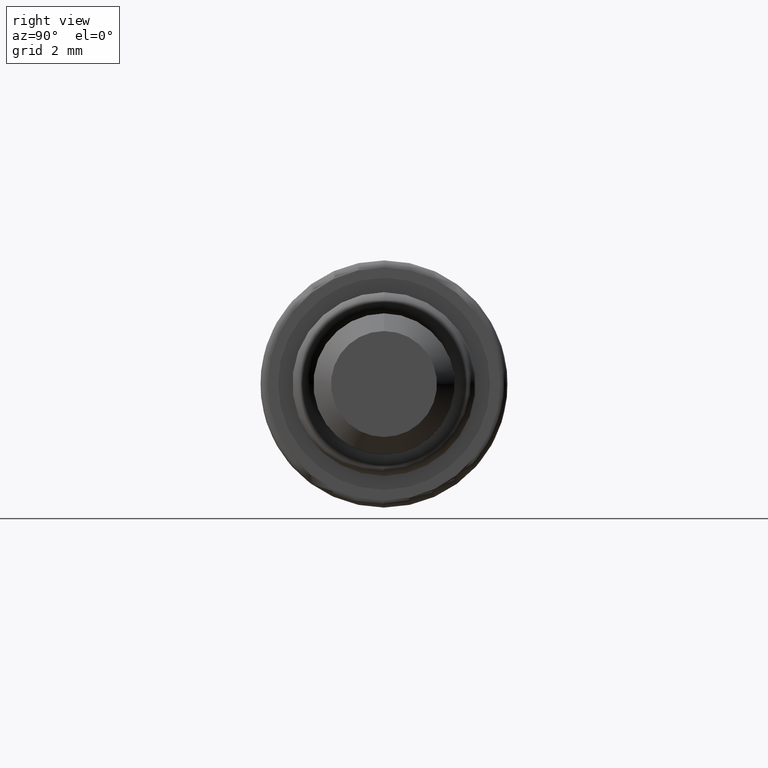
[diagram: clean part render]
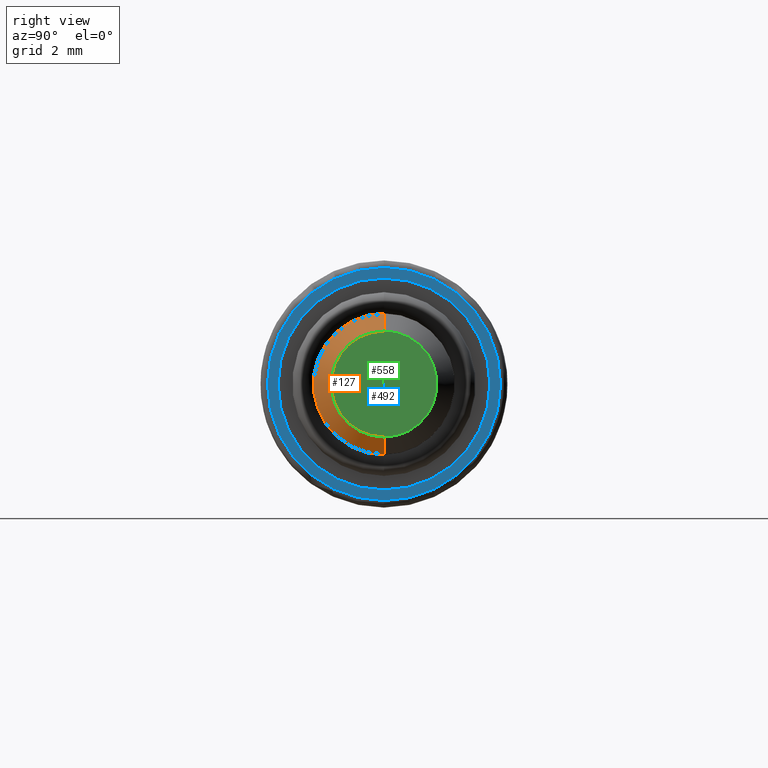
[diagram: same view with three faces highlighted in distinct colors, each labeled with its STEP entity id]
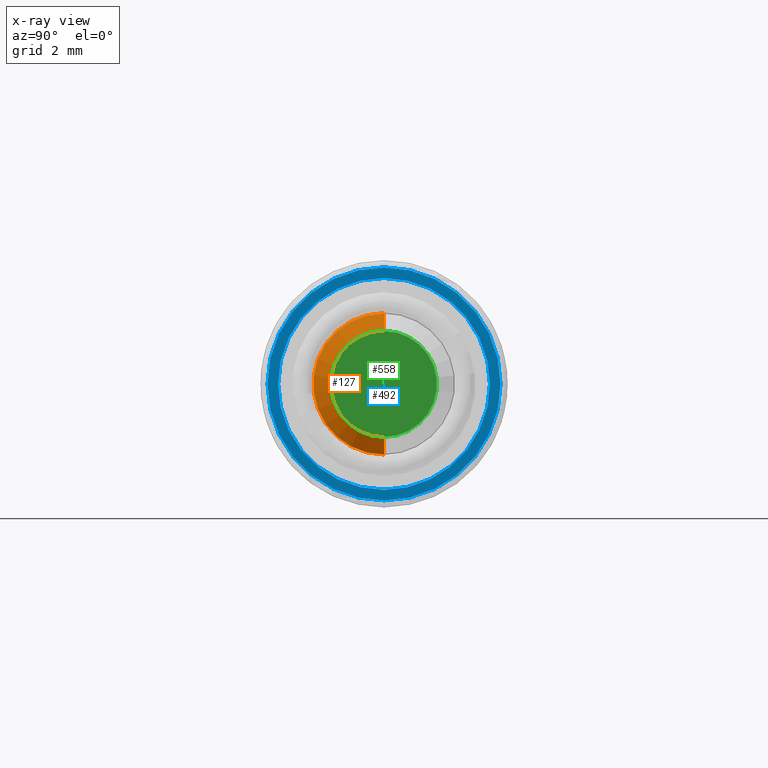
[diagram: x-ray of the same camera — body ghosted, the three highlighted faces saturated]
A machine part, right view with three faces highlighted in distinct colors.
The next image is the same camera in x-ray (body ghosted, the three faces saturated) — at least one of them is partly hidden behind the body in this view.
Their STEP definitions:

[orange] entity #127 — the highlighted conical surface has half-angle 45 deg.
#16 = DIRECTION ( 'NONE',  ( 0.0000000000000000000, 0.0000000000000000000, 1.000000000000000000 ) ) ;
#40 = DIRECTION ( 'NONE',  ( -1.000000000000000000, 0.0000000000000000000, 0.0000000000000000000 ) ) ;
#121 = CONICAL_SURFACE ( 'NONE', #613, 1.499999999999999600, 0.7853981633974482800 ) ;
#127 = ADVANCED_FACE ( 'NONE', ( #316 ), #121, .T. ) ;
#131 = ORIENTED_EDGE ( 'NONE', *, *, #468, .F. ) ;
#168 = DIRECTION ( 'NONE',  ( 1.000000000000000000, 0.0000000000000000000, 0.0000000000000000000 ) ) ;
#182 = CARTESIAN_POINT ( 'NONE',  ( 15.00000000000000000, 0.0000000000000000000, 0.0000000000000000000 ) ) ;
#207 = ORIENTED_EDGE ( 'NONE', *, *, #273, .F. ) ;
#223 = CIRCLE ( 'NONE', #394, 1.499999999999999600 ) ;
#229 = CARTESIAN_POINT ( 'NONE',  ( 15.00000000000000000, 0.0000000000000000000, 1.499999999999999600 ) ) ;
#232 = CARTESIAN_POINT ( 'NONE',  ( 15.00000000000000000, 0.0000000000000000000, 1.499999999999999600 ) ) ;
#273 = EDGE_CURVE ( 'NONE', #542, #445, #670, .T. ) ;
#283 = CARTESIAN_POINT ( 'NONE',  ( 15.00000000000000000, 1.836970198721029400E-016, -1.499999999999999600 ) ) ;
#292 = DIRECTION ( 'NONE',  ( -0.7071067811865474600, 0.0000000000000000000, 0.7071067811865474600 ) ) ;
#316 = FACE_OUTER_BOUND ( 'NONE', #339, .T. ) ;
#321 = DIRECTION ( 'NONE',  ( -1.000000000000000000, 0.0000000000000000000, 0.0000000000000000000 ) ) ;
#339 = EDGE_LOOP ( 'NONE', ( #207, #437, #344, #131 ) ) ;
#344 = ORIENTED_EDGE ( 'NONE', *, *, #760, .T. ) ;
#384 = VECTOR ( 'NONE', #292, 1000.000000000000100 ) ;
#390 = CARTESIAN_POINT ( 'NONE',  ( 14.49999999999999800, 0.0000000000000000000, 2.000000000000000000 ) ) ;
#394 = AXIS2_PLACEMENT_3D ( 'NONE', #550, #168, #615 ) ;
#399 = CARTESIAN_POINT ( 'NONE',  ( 14.49999999999999800, 0.0000000000000000000, 0.0000000000000000000 ) ) ;
#417 = CIRCLE ( 'NONE', #457, 2.000000000000000000 ) ;
#437 = ORIENTED_EDGE ( 'NONE', *, *, #799, .F. ) ;
#445 = VERTEX_POINT ( 'NONE', #664 ) ;
#457 = AXIS2_PLACEMENT_3D ( 'NONE', #399, #321, #539 ) ;
#458 = VERTEX_POINT ( 'NONE', #390 ) ;
#468 = EDGE_CURVE ( 'NONE', #445, #458, #417, .T. ) ;
#496 = VECTOR ( 'NONE', #680, 1000.000000000000100 ) ;
#539 = DIRECTION ( 'NONE',  ( 0.0000000000000000000, 0.0000000000000000000, -1.000000000000000000 ) ) ;
#542 = VERTEX_POINT ( 'NONE', #712 ) ;
#550 = CARTESIAN_POINT ( 'NONE',  ( 15.00000000000000000, 0.0000000000000000000, 0.0000000000000000000 ) ) ;
#561 = LINE ( 'NONE', #232, #384 ) ;
#613 = AXIS2_PLACEMENT_3D ( 'NONE', #182, #40, #16 ) ;
#615 = DIRECTION ( 'NONE',  ( 0.0000000000000000000, 0.0000000000000000000, -1.000000000000000000 ) ) ;
#664 = CARTESIAN_POINT ( 'NONE',  ( 14.49999999999999800, 2.449293598294706400E-016, -2.000000000000000000 ) ) ;
#670 = LINE ( 'NONE', #283, #496 ) ;
#680 = DIRECTION ( 'NONE',  ( -0.7071067811865474600, 8.659560562354932900E-017, -0.7071067811865474600 ) ) ;
#712 = CARTESIAN_POINT ( 'NONE',  ( 15.00000000000000000, 2.143131898507867800E-016, -1.499999999999999600 ) ) ;
#755 = VERTEX_POINT ( 'NONE', #229 ) ;
#760 = EDGE_CURVE ( 'NONE', #755, #458, #561, .T. ) ;
#799 = EDGE_CURVE ( 'NONE', #755, #542, #223, .T. ) ;

[blue] entity #492 — the highlighted planar face has unit normal (1, 0, 0).
#5 = ORIENTED_EDGE ( 'NONE', *, *, #196, .F. ) ;
#20 = CARTESIAN_POINT ( 'NONE',  ( 0.0000000000000000000, 3.673940397442060400E-016, 3.000000000000000400 ) ) ;
#33 = DIRECTION ( 'NONE',  ( 1.000000000000000000, 0.0000000000000000000, 0.0000000000000000000 ) ) ;
#67 = EDGE_CURVE ( 'NONE', #153, #618, #192, .T. ) ;
#89 = AXIS2_PLACEMENT_3D ( 'NONE', #609, #472, #467 ) ;
#100 = FACE_OUTER_BOUND ( 'NONE', #608, .T. ) ;
#138 = AXIS2_PLACEMENT_3D ( 'NONE', #409, #33, #474 ) ;
#148 = CIRCLE ( 'NONE', #138, 3.300000000000000300 ) ;
#152 = PLANE ( 'NONE',  #596 ) ;
#153 = VERTEX_POINT ( 'NONE', #605 ) ;
#192 = CIRCLE ( 'NONE', #432, 3.000000000000000400 ) ;
#196 = EDGE_CURVE ( 'NONE', #618, #153, #635, .T. ) ;
#197 = ORIENTED_EDGE ( 'NONE', *, *, #726, .T. ) ;
#201 = CIRCLE ( 'NONE', #89, 3.300000000000000300 ) ;
#307 = CARTESIAN_POINT ( 'NONE',  ( 0.0000000000000000000, 0.0000000000000000000, 0.0000000000000000000 ) ) ;
#320 = VERTEX_POINT ( 'NONE', #373 ) ;
#328 = ORIENTED_EDGE ( 'NONE', *, *, #67, .F. ) ;
#370 = DIRECTION ( 'NONE',  ( 0.0000000000000000000, 0.0000000000000000000, -1.000000000000000000 ) ) ;
#373 = CARTESIAN_POINT ( 'NONE',  ( 0.0000000000000000000, 0.0000000000000000000, -3.300000000000000300 ) ) ;
#409 = CARTESIAN_POINT ( 'NONE',  ( 0.0000000000000000000, 0.0000000000000000000, 0.0000000000000000000 ) ) ;
#420 = DIRECTION ( 'NONE',  ( 1.000000000000000000, 0.0000000000000000000, 0.0000000000000000000 ) ) ;
#432 = AXIS2_PLACEMENT_3D ( 'NONE', #307, #559, #654 ) ;
#455 = CARTESIAN_POINT ( 'NONE',  ( 0.0000000000000000000, 0.0000000000000000000, 0.0000000000000000000 ) ) ;
#467 = DIRECTION ( 'NONE',  ( 0.0000000000000000000, 0.0000000000000000000, -1.000000000000000000 ) ) ;
#472 = DIRECTION ( 'NONE',  ( 1.000000000000000000, 0.0000000000000000000, 0.0000000000000000000 ) ) ;
#474 = DIRECTION ( 'NONE',  ( 0.0000000000000000000, 0.0000000000000000000, -1.000000000000000000 ) ) ;
#492 = ADVANCED_FACE ( 'NONE', ( #100, #737 ), #152, .T. ) ;
#495 = CARTESIAN_POINT ( 'NONE',  ( 0.0000000000000000000, 0.0000000000000000000, 0.0000000000000000000 ) ) ;
#559 = DIRECTION ( 'NONE',  ( 1.000000000000000000, 0.0000000000000000000, 0.0000000000000000000 ) ) ;
#563 = EDGE_CURVE ( 'NONE', #320, #616, #201, .T. ) ;
#596 = AXIS2_PLACEMENT_3D ( 'NONE', #455, #818, #601 ) ;
#601 = DIRECTION ( 'NONE',  ( 0.0000000000000000000, 0.0000000000000000000, -1.000000000000000000 ) ) ;
#605 = CARTESIAN_POINT ( 'NONE',  ( 0.0000000000000000000, 0.0000000000000000000, -3.000000000000000400 ) ) ;
#608 = EDGE_LOOP ( 'NONE', ( #817, #197 ) ) ;
#609 = CARTESIAN_POINT ( 'NONE',  ( 0.0000000000000000000, 0.0000000000000000000, 0.0000000000000000000 ) ) ;
#616 = VERTEX_POINT ( 'NONE', #785 ) ;
#618 = VERTEX_POINT ( 'NONE', #20 ) ;
#635 = CIRCLE ( 'NONE', #699, 3.000000000000000400 ) ;
#654 = DIRECTION ( 'NONE',  ( 0.0000000000000000000, 0.0000000000000000000, -1.000000000000000000 ) ) ;
#699 = AXIS2_PLACEMENT_3D ( 'NONE', #495, #420, #370 ) ;
#704 = EDGE_LOOP ( 'NONE', ( #328, #5 ) ) ;
#726 = EDGE_CURVE ( 'NONE', #616, #320, #148, .T. ) ;
#737 = FACE_BOUND ( 'NONE', #704, .T. ) ;
#785 = CARTESIAN_POINT ( 'NONE',  ( 0.0000000000000000000, 4.163799117101001500E-016, 3.300000000000000300 ) ) ;
#817 = ORIENTED_EDGE ( 'NONE', *, *, #563, .T. ) ;
#818 = DIRECTION ( 'NONE',  ( 1.000000000000000000, 0.0000000000000000000, 0.0000000000000000000 ) ) ;

[green] entity #558 — the highlighted planar face has unit normal (1, 0, 0).
#81 = DIRECTION ( 'NONE',  ( 1.000000000000000000, 0.0000000000000000000, 0.0000000000000000000 ) ) ;
#129 = AXIS2_PLACEMENT_3D ( 'NONE', #338, #762, #397 ) ;
#168 = DIRECTION ( 'NONE',  ( 1.000000000000000000, 0.0000000000000000000, 0.0000000000000000000 ) ) ;
#223 = CIRCLE ( 'NONE', #394, 1.499999999999999600 ) ;
#229 = CARTESIAN_POINT ( 'NONE',  ( 15.00000000000000000, 0.0000000000000000000, 1.499999999999999600 ) ) ;
#286 = EDGE_LOOP ( 'NONE', ( #642, #357 ) ) ;
#338 = CARTESIAN_POINT ( 'NONE',  ( 15.00000000000000000, 0.0000000000000000000, 0.0000000000000000000 ) ) ;
#357 = ORIENTED_EDGE ( 'NONE', *, *, #632, .T. ) ;
#372 = FACE_OUTER_BOUND ( 'NONE', #286, .T. ) ;
#394 = AXIS2_PLACEMENT_3D ( 'NONE', #550, #168, #615 ) ;
#397 = DIRECTION ( 'NONE',  ( 0.0000000000000000000, 0.0000000000000000000, -1.000000000000000000 ) ) ;
#453 = DIRECTION ( 'NONE',  ( 0.0000000000000000000, 0.0000000000000000000, -1.000000000000000000 ) ) ;
#525 = CARTESIAN_POINT ( 'NONE',  ( 15.00000000000000000, 0.0000000000000000000, 0.0000000000000000000 ) ) ;
#542 = VERTEX_POINT ( 'NONE', #712 ) ;
#550 = CARTESIAN_POINT ( 'NONE',  ( 15.00000000000000000, 0.0000000000000000000, 0.0000000000000000000 ) ) ;
#558 = ADVANCED_FACE ( 'NONE', ( #372 ), #733, .T. ) ;
#615 = DIRECTION ( 'NONE',  ( 0.0000000000000000000, 0.0000000000000000000, -1.000000000000000000 ) ) ;
#632 = EDGE_CURVE ( 'NONE', #542, #755, #739, .T. ) ;
#642 = ORIENTED_EDGE ( 'NONE', *, *, #799, .T. ) ;
#712 = CARTESIAN_POINT ( 'NONE',  ( 15.00000000000000000, 2.143131898507867800E-016, -1.499999999999999600 ) ) ;
#733 = PLANE ( 'NONE',  #129 ) ;
#739 = CIRCLE ( 'NONE', #807, 1.499999999999999600 ) ;
#755 = VERTEX_POINT ( 'NONE', #229 ) ;
#762 = DIRECTION ( 'NONE',  ( 1.000000000000000000, 0.0000000000000000000, 0.0000000000000000000 ) ) ;
#799 = EDGE_CURVE ( 'NONE', #755, #542, #223, .T. ) ;
#807 = AXIS2_PLACEMENT_3D ( 'NONE', #525, #81, #453 ) ;